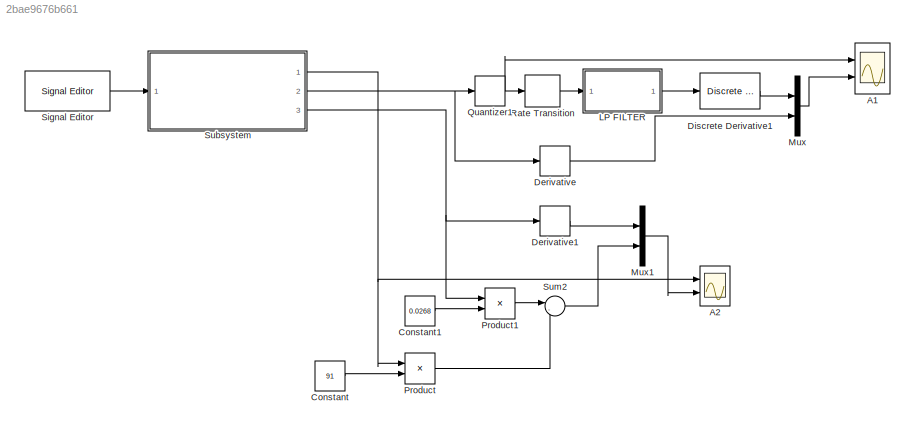
MODEL slx_2bae9676b661
KIND model
CONFIG AbsTol = 1e-3
CONFIG EnableMultiTasking = on
CONFIG FixedStep = auto
CONFIG MaxStep = auto
CONFIG MinStep = auto
CONFIG RelTol = 1e-3
CONFIG SampleTimeConstraint = Unconstrained
CONFIG Solver = ode15s
CONFIG SolverName = ode15s
CONFIG StartTime = 0.0
CONFIG StopTime = 120
BLOCK [Scope] A1
  Floating = off
  NumInputPorts = 2
  Ports = [2]
  ScopeSpecificationString = Simulink.scopes.TimeScopeBlockCfg('CurrentConfiguration', extmgr.ConfigurationSet(extmgr.Configuration('Core','General UI',true),extmgr.Configuration('Core','Source UI',true),extmgr.Configuration('Sources','WiredSimulink',true,'DataLogging',true,'DataLoggingVariableName','ScopeData2','DataLoggingSaveFormat','StructureWithTime','DataLoggingDecimation','1','DataLoggingDecimateData',true),extmgr.Conf...<+2201ch>
BLOCK [Scope] A2
  Floating = off
  NumInputPorts = 2
  Ports = [2]
  ScopeSpecificationString = Simulink.scopes.TimeScopeBlockCfg('CurrentConfiguration', extmgr.ConfigurationSet(extmgr.Configuration('Core','General UI',true),extmgr.Configuration('Core','Source UI',true),extmgr.Configuration('Sources','WiredSimulink',true,'DataLogging',true,'DataLoggingSaveFormat','StructureWithTime','DataLoggingDecimation','1','DataLoggingDecimateData',true),extmgr.Configuration('Visuals','Time Domain',true,...<+2158ch>
BLOCK [Constant] Constant
  Value = 91
BLOCK [Constant] Constant1
  Value = 0.0268
BLOCK [Derivative] Derivative
BLOCK [Derivative] Derivative1
BLOCK [Reference] Discrete Derivative1  REF=simulink/Discrete/Discrete Derivative
  Ports = [1, 1]
  SourceBlock = simulink/Discrete/Discrete Derivative
  SourceProductBaseCode = SL
  SourceProductName = Simulink
  SourceType = Discrete Derivative
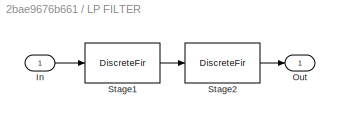
BLOCK [SubSystem] LP FILTER
  Ports = [1, 1]
  RequestExecContextInheritance = off
  Tag = BlockMethodSubSystem
BLOCK [Inport] LP FILTER/In
  IconDisplay = Port number
BLOCK [Outport] LP FILTER/Out
  IconDisplay = Port number
BLOCK [DiscreteFir] LP FILTER/Stage1
  Coefficients = [-0.00199176357174310351 -0.00530450815012495358 -0.00950904683591792532 -0.0118117877261882422 -0.00798237885539230044 0.00626240257079945309 0.0330636315806409897 0.0704895675201800964 0.112018428473465742 0.14803803569995988 0.169011346165353848 0.169011346165353848 0.14803803569995988 0.112018428473465742 0.0704895675201800964 0.0330636315806409897 0.00626240257079945309 -0.0079823788553923004...<+97ch>
  InputPortMap = u0
  InputProcessing = Columns as channels (frame based)
  OutputPortMap = o0
  Ports = [1, 1]
  Tag = BlockMethodSubSystem
BLOCK [DiscreteFir] LP FILTER/Stage2
  Coefficients = [0.000211638813508944449 0 0 0 0 -0.00191887158392450331 0 0 0 0 -0.00480866362502560454 0 0 0 0 -0.00567328345390206989 0 0 0 0 -0.000542412375559235549 0 0 0 0 0.0101759749332177817 0 0 0 0 0.0183947823331915665 0 0 0 0 0.012300284360340915 0 0 0 0 -0.0123410580554456292 0 0 0 0 -0.0419986004222386786 0 0 0 0 -0.0477281139772199603 0 0 0 0 -0.00331824393029788584 0 0 0 0 0.0917895196921782175 0 ...<+519ch>
  InputPortMap = u0
  InputProcessing = Columns as channels (frame based)
  OutputPortMap = o0
  Ports = [1, 1]
  Tag = BlockMethodSubSystem
BLOCK [Mux] Mux
  DisplayOption = bar
  Inputs = 2
  Ports = [2, 1]
BLOCK [Mux] Mux1
  DisplayOption = bar
  Inputs = 2
  Ports = [2, 1]
BLOCK [Product] Product
  InputSameDT = off
  OutDataTypeStr = Inherit: Inherit via internal rule
  Ports = [2, 1]
  RndMeth = Floor
  SaturateOnIntegerOverflow = off
BLOCK [Product] Product1
  InputSameDT = off
  OutDataTypeStr = Inherit: Inherit via internal rule
  Ports = [2, 1]
  RndMeth = Floor
  SaturateOnIntegerOverflow = off
BLOCK [Quantizer] Quantizer1
  QuantizationInterval = 0.0061
BLOCK [RateTransition] Rate Transition
  OutPortSampleTime = 0.0001
BLOCK [Reference] Signal Editor  REF=SignalEditorBlockLib/Signal Editor
  Ports = [0, 1]
  SourceBlock = SignalEditorBlockLib/Signal Editor
  SourceType = SignalEditor
  UserDataPersistent = on
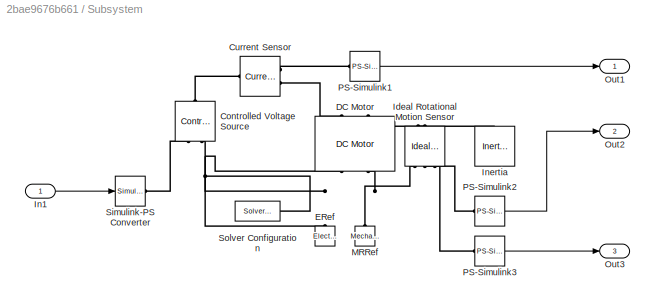
BLOCK [SubSystem] Subsystem
  Ports = [1, 3]
  RequestExecContextInheritance = off
BLOCK [Reference] Subsystem/Controlled Voltage Source  REF=fl_lib/Electrical/Electrical Sources/Controlled Voltage
Source
  Ports = [0, 0, 0, 0, 0, 1, 2]
  SourceBlock = fl_lib/Electrical/Electrical Sources/Controlled Voltage\nSource
  SourceProductBaseCode = SS
  SourceProductName = Simscape
  SourceType = Controlled Voltage\nSource
BLOCK [Reference] Subsystem/Current Sensor  REF=fl_lib/Electrical/Electrical Sensors/Current Sensor
  Ports = [0, 0, 0, 0, 0, 1, 2]
  SourceBlock = fl_lib/Electrical/Electrical Sensors/Current Sensor
  SourceProductName = Foundation Library
  SourceType = Current Sensor
BLOCK [Reference] Subsystem/DC Motor  REF=elec_lib/Actuators & Drivers/Rotational Actuators/DC Motor
  Ports = [0, 0, 0, 0, 0, 2, 2]
  SourceBlock = elec_lib/Actuators & Drivers/Rotational Actuators/DC Motor
  SourceProductBaseCode = SN
  SourceProductName = Simscape Electronics
  SourceType = DC Motor
BLOCK [Reference] Subsystem/ERef  REF=fl_lib/Electrical/Electrical Elements/Electrical Reference
  Ports = [0, 0, 0, 0, 0, 1]
  SourceBlock = fl_lib/Electrical/Electrical Elements/Electrical Reference
  SourceProductName = Foundation Library
  SourceType = Electrical Reference
BLOCK [Reference] Subsystem/Ideal Rotational Motion Sensor  REF=fl_lib/Mechanical/Mechanical Sensors/Ideal Rotational
Motion Sensor
  Ports = [0, 0, 0, 0, 0, 1, 3]
  SourceBlock = fl_lib/Mechanical/Mechanical Sensors/Ideal Rotational\nMotion Sensor
  SourceProductName = Foundation Library
  SourceType = Ideal Rotational\nMotion Sensor
BLOCK [Inport] Subsystem/In1
  IconDisplay = Port number
BLOCK [Reference] Subsystem/Inertia  REF=fl_lib/Mechanical/Rotational Elements/Inertia
  Ports = [0, 0, 0, 0, 0, 1]
  SourceBlock = fl_lib/Mechanical/Rotational Elements/Inertia
  SourceProductBaseCode = SS
  SourceProductName = Simscape
  SourceType = Inertia
BLOCK [Reference] Subsystem/MRRef  REF=fl_lib/Mechanical/Rotational Elements/Mechanical
Rotational Reference
  Ports = [0, 0, 0, 0, 0, 1]
  SourceBlock = fl_lib/Mechanical/Rotational Elements/Mechanical\nRotational Reference
  SourceProductName = Foundation Library
  SourceType = Mechanical\nRotational Reference
BLOCK [Outport] Subsystem/Out1
  IconDisplay = Port number
BLOCK [Outport] Subsystem/Out2
  IconDisplay = Port number
  Port = 2
BLOCK [Outport] Subsystem/Out3
  IconDisplay = Port number
  Port = 3
BLOCK [Reference] Subsystem/PS-Simulink1  REF=nesl_utility/PS-Simulink
Converter
  Ports = [0, 1, 0, 0, 0, 1]
  SourceBlock = nesl_utility/PS-Simulink\nConverter
  SourceProductBaseCode = SS
  SourceProductName = Simscape
  SourceType = PS-Simulink\nConverter
BLOCK [Reference] Subsystem/PS-Simulink2  REF=nesl_utility/PS-Simulink
Converter
  Ports = [0, 1, 0, 0, 0, 1]
  SourceBlock = nesl_utility/PS-Simulink\nConverter
  SourceProductBaseCode = SS
  SourceProductName = Simscape
  SourceType = PS-Simulink\nConverter
BLOCK [Reference] Subsystem/PS-Simulink3  REF=nesl_utility/PS-Simulink
Converter
  Ports = [0, 1, 0, 0, 0, 1]
  SourceBlock = nesl_utility/PS-Simulink\nConverter
  SourceProductBaseCode = SS
  SourceProductName = Simscape
  SourceType = PS-Simulink\nConverter
BLOCK [Reference] Subsystem/Simulink-PS Converter  REF=nesl_utility/Simulink-PS
Converter
  Ports = [1, 0, 0, 0, 0, 0, 1]
  SourceBlock = nesl_utility/Simulink-PS\nConverter
  SourceProductBaseCode = SS
  SourceProductName = Simscape
  SourceType = Simulink-PS\nConverter
BLOCK [Reference] Subsystem/Solver Configuration  REF=nesl_utility/Solver
Configuration
  Ports = [0, 0, 0, 0, 0, 0, 1]
  SourceBlock = nesl_utility/Solver\nConfiguration
  SourceProductBaseCode = SS
  SourceProductName = Simscape
  SourceType = Solver\nConfiguration
BLOCK [Sum] Sum2
  IconShape = round
  InputSameDT = off
  Inputs = |-+
  OutDataTypeStr = Inherit: Inherit via internal rule
  Ports = [2, 1]
  SaturateOnIntegerOverflow = off
LINE Constant1:1 -> Product1:2
LINE Constant:1 -> Product:2
LINE Derivative1:1 -> Mux1:1
LINE Derivative:1 -> Mux:2
LINE Discrete Derivative1:1 -> Mux:1
LINE LP FILTER/In:1 -> LP FILTER/Stage1:1
LINE LP FILTER/Stage1:1 -> LP FILTER/Stage2:1
LINE LP FILTER/Stage2:1 -> LP FILTER/Out:1
LINE LP FILTER:1 -> Discrete Derivative1:1
LINE Mux1:1 -> A2:2
LINE Mux:1 -> A1:2
LINE Product1:1 -> Sum2:1
LINE Product:1 -> Sum2:2
NET Quantizer1:1 -> A1:1, Rate Transition:1
LINE Rate Transition:1 -> LP FILTER:1
LINE Signal Editor:1 -> Subsystem:1
LINE Subsystem/In1:1 -> Subsystem/Simulink-PS Converter:1
LINE Subsystem/PS-Simulink1:1 -> Subsystem/Out1:1
LINE Subsystem/PS-Simulink2:1 -> Subsystem/Out2:1
LINE Subsystem/PS-Simulink3:1 -> Subsystem/Out3:1
NET Subsystem:1 -> A2:1, Product:1
NET Subsystem:2 -> Derivative:1, Quantizer1:1
NET Subsystem:3 -> Derivative1:1, Product1:1
LINE Sum2:1 -> Mux1:2
PLINE Subsystem/Controlled Voltage Source:LConn1 -- Subsystem/Current Sensor:LConn1
PLINE Subsystem/Controlled Voltage Source:RConn1 -- Subsystem/Simulink-PS Converter:RConn1
PNET net1: Subsystem/Controlled Voltage Source:RConn2 -- Subsystem/DC Motor:RConn1 -- Subsystem/ERef:LConn1 -- Subsystem/Solver Configuration:RConn1
PLINE Subsystem/Current Sensor:RConn1 -- Subsystem/PS-Simulink1:LConn1
PLINE Subsystem/Current Sensor:RConn2 -- Subsystem/DC Motor:LConn1
PNET net2: Subsystem/DC Motor:LConn2 -- Subsystem/Ideal Rotational Motion Sensor:LConn1 -- Subsystem/Inertia:LConn1
PNET net3: Subsystem/DC Motor:RConn2 -- Subsystem/Ideal Rotational Motion Sensor:RConn1 -- Subsystem/MRRef:LConn1
PLINE Subsystem/Ideal Rotational Motion Sensor:RConn2 -- Subsystem/PS-Simulink3:LConn1
PLINE Subsystem/Ideal Rotational Motion Sensor:RConn3 -- Subsystem/PS-Simulink2:LConn1
note: NET lines group one-source signal fan-out (src -> all destinations, sorted); 1:1 wires keep LINE; PNET lines group multi-terminal physical nets as a canonical sorted terminal list (undirected conserving connections); 2-terminal nets keep the pairwise PLINE form
